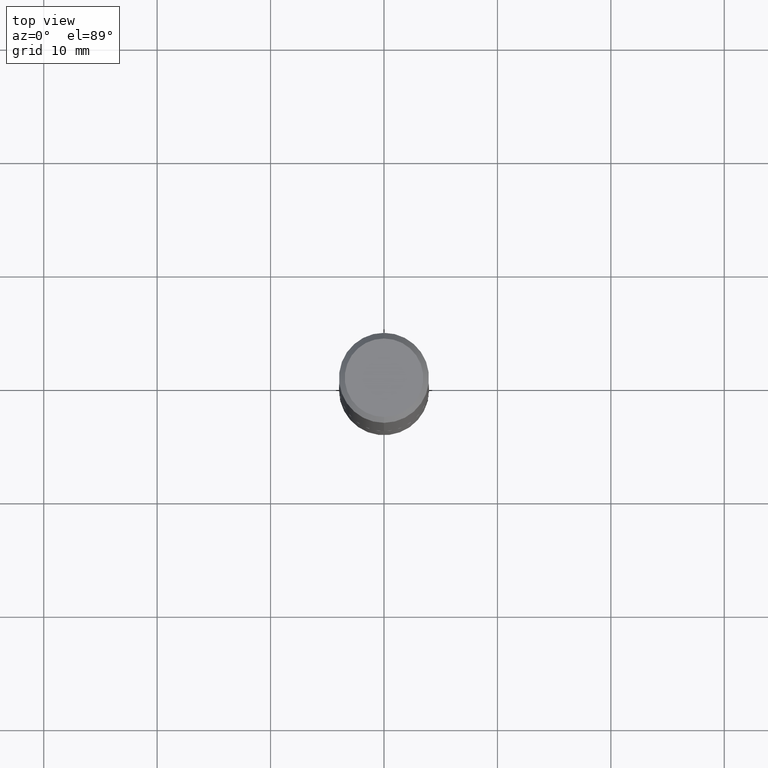
[diagram: clean part render]
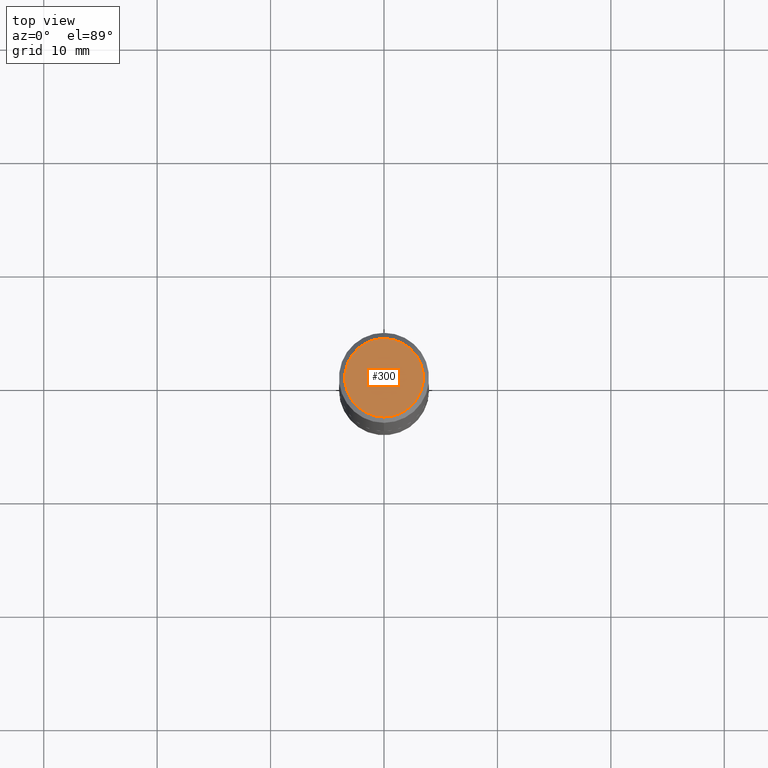
[diagram: same view with one face highlighted and labeled with its STEP entity id]
A machine part, top view. The second image highlights one B-rep face of the part: STEP entity #300.
In plain terms, the highlighted planar face has unit normal (0, -0, -1).
Its self-contained STEP definition (entity closure, byte-faithful):
#1 = VERTEX_POINT ( 'NONE', #77 ) ;
#3 = CARTESIAN_POINT ( 'NONE',  ( 2.086446098065139374E-45, -2.979437259524717068E-31, -8.532665536283094915E-17 ) ) ;
#18 = CARTESIAN_POINT ( 'NONE',  ( 2.086446098065139374E-45, -2.979437259524717068E-31, -8.532665536283094915E-17 ) ) ;
#52 = DIRECTION ( 'NONE',  ( 2.445245379879280031E-29, -3.491801298029767256E-15, -1.000000000000000000 ) ) ;
#77 = CARTESIAN_POINT ( 'NONE',  ( -1.003347832174086672E-15, -0.1362500000000001210, 3.904312714937253645E-16 ) ) ;
#88 = VERTEX_POINT ( 'NONE', #273 ) ;
#90 = FACE_OUTER_BOUND ( 'NONE', #281, .T. ) ;
#103 = PLANE ( 'NONE',  #298 ) ;
#111 = AXIS2_PLACEMENT_3D ( 'NONE', #3, #296, #341 ) ;
#114 = CIRCLE ( 'NONE', #346, 0.1362500000000001210 ) ;
#154 = DIRECTION ( 'NONE',  ( -6.982962677686267499E-15, -1.000000000000000000, 3.491801298029767650E-15 ) ) ;
#155 = DIRECTION ( 'NONE',  ( 6.982962677686265922E-15, 1.000000000000000000, -3.491801298029767256E-15 ) ) ;
#174 = ORIENTED_EDGE ( 'NONE', *, *, #310, .T. ) ;
#226 = CARTESIAN_POINT ( 'NONE',  ( 9.514286648347547465E-16, 0.1362500000000001210, -5.184212545379717821E-16 ) ) ;
#235 = CIRCLE ( 'NONE', #111, 0.1362500000000001210 ) ;
#241 = EDGE_CURVE ( 'NONE', #1, #88, #235, .T. ) ;
#273 = CARTESIAN_POINT ( 'NONE',  ( 1.021258291611617256E-15, 0.1362500000000001210, -5.610845822193871889E-16 ) ) ;
#281 = EDGE_LOOP ( 'NONE', ( #174, #399 ) ) ;
#291 = DIRECTION ( 'NONE',  ( -2.445245379879280031E-29, 3.491801298029767650E-15, 1.000000000000000000 ) ) ;
#296 = DIRECTION ( 'NONE',  ( -2.445245379879280031E-29, 3.491801298029767650E-15, 1.000000000000000000 ) ) ;
#298 = AXIS2_PLACEMENT_3D ( 'NONE', #226, #52, #155 ) ;
#300 = ADVANCED_FACE ( 'NONE', ( #90 ), #103, .F. ) ;
#310 = EDGE_CURVE ( 'NONE', #88, #1, #114, .T. ) ;
#341 = DIRECTION ( 'NONE',  ( -6.982962677686267499E-15, -1.000000000000000000, 3.491801298029767650E-15 ) ) ;
#346 = AXIS2_PLACEMENT_3D ( 'NONE', #18, #291, #154 ) ;
#399 = ORIENTED_EDGE ( 'NONE', *, *, #241, .T. ) ;